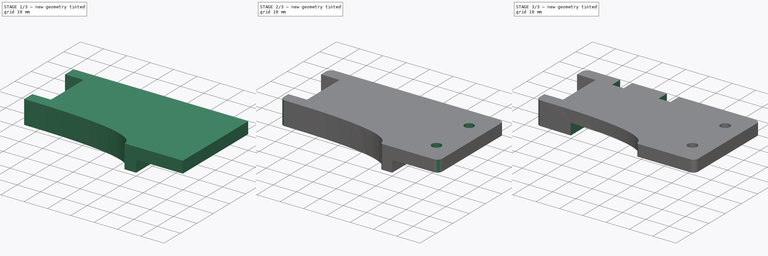
[diagram: build sequence overview — one tinted view per stage of 3, left to right]
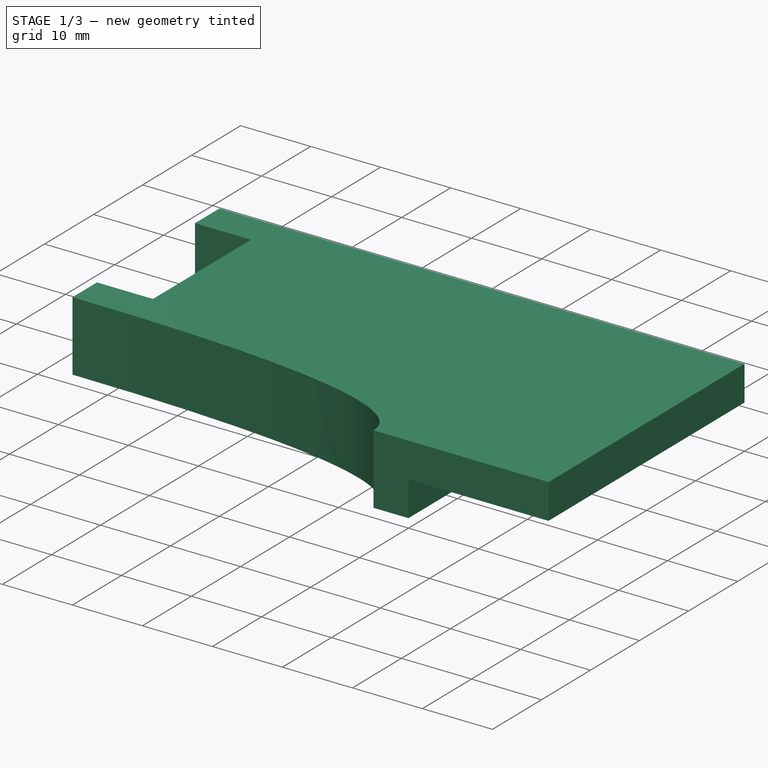
[diagram: stage 1 of 3 — iso view after this stage's code; geometry added in this stage tinted green]
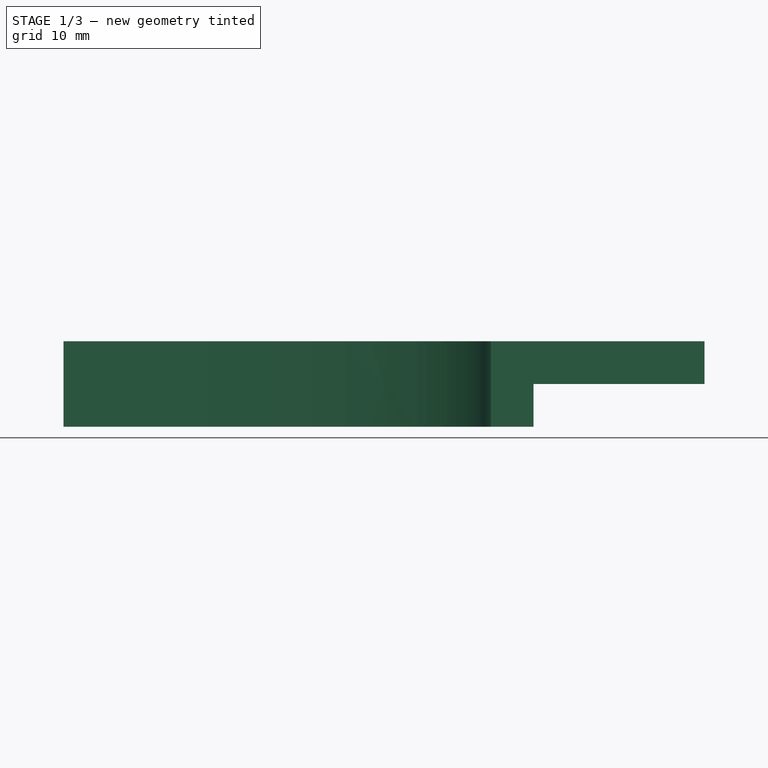
[diagram: stage 1 of 3 — front view after this stage's code; geometry added in this stage tinted green]
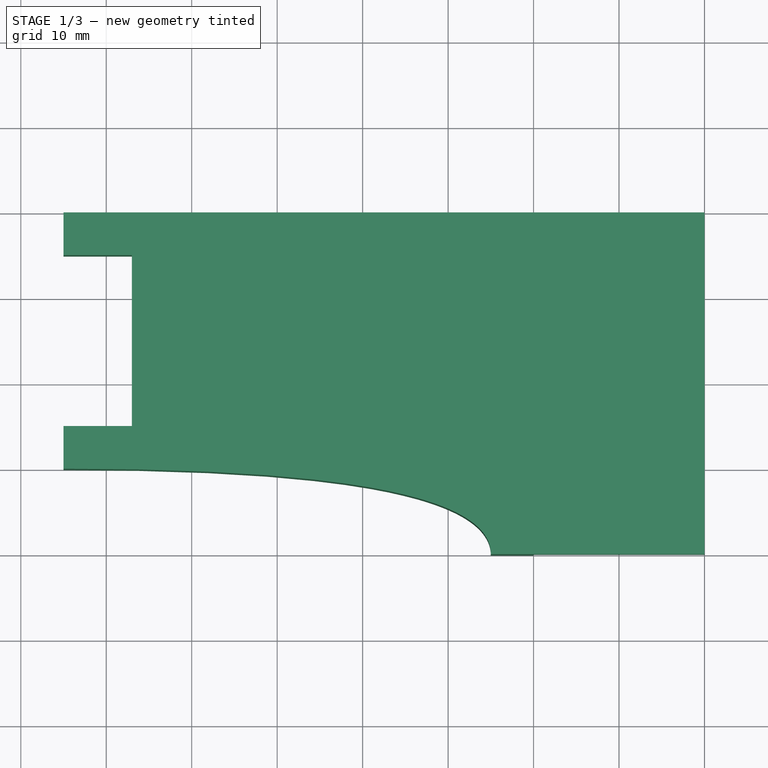
[diagram: stage 1 of 3 — top view after this stage's code; geometry added in this stage tinted green]
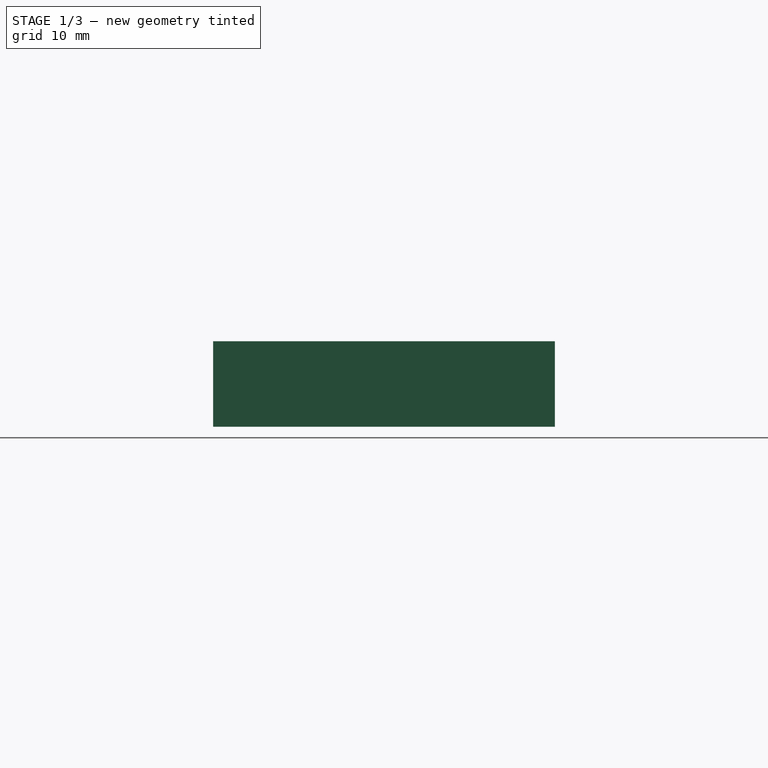
[diagram: stage 1 of 3 — right view after this stage's code; geometry added in this stage tinted green]
FCSTD DOCUMENT  (FreeCAD 0.21R33771 (Git))
Label: button_mount_v4
License: All rights reserved
LicenseURL: https://en.wikipedia.org/wiki/All_rights_reserved
objects: Sketcher::SketchObject×5, PartDesign::Pocket×4, PartDesign::Body×2, PartDesign::Fillet×2, PartDesign::Pad×1
note: 21 computed .brp shape members not serialized (recipe doc carries the construction recipe); baked Part::Feature solids carry a one-line shape summary decoded from their .brp

FEATURE [Sketcher::SketchObject] Sketch
  FullyConstrained = false
  MapMode = 5
  Support = -> [XY_Plane]
  sketch-geometry (14):
    g0: LineSegment StartX=0 StartY=0 StartZ=0 EndX=0 EndY=40 EndZ=0
    g1: LineSegment StartX=-75 StartY=35 StartZ=0 EndX=-67 EndY=35 EndZ=0
    g2: LineSegment StartX=-67 StartY=35 StartZ=0 EndX=-67 EndY=15 EndZ=0
    g3: LineSegment StartX=-67 StartY=15 StartZ=0 EndX=-75 EndY=15 EndZ=0
    g4: LineSegment StartX=0 StartY=0 StartZ=0 EndX=-25 EndY=0 EndZ=0
    g5: Circle CenterX=-25 CenterY=0 CenterZ=0 NormalX=0 NormalY=0 NormalZ=1 AngleXU=0 Radius=1
    g6: Circle CenterX=-25 CenterY=10 CenterZ=0 NormalX=0 NormalY=0 NormalZ=1 AngleXU=0 Radius=1
    g7: Circle CenterX=-75 CenterY=10 CenterZ=0 NormalX=0 NormalY=0 NormalZ=1 AngleXU=0 Radius=1
    g8: BSplineCurve PolesCount=3 KnotsCount=2 Degree=2 IsPeriodic=0
    g9: GeomPoint X=-25 Y=0 Z=0
    g10: GeomPoint X=-75 Y=10 Z=0
    g11: LineSegment StartX=-75 StartY=10 StartZ=0 EndX=-75 EndY=15 EndZ=0
    g12: LineSegment StartX=-75 StartY=40 StartZ=0 EndX=-75 EndY=35 EndZ=0
    g13: LineSegment StartX=-75 StartY=40 StartZ=0 EndX=0 EndY=40 EndZ=0
  constraints (35):
    c: Coincident(g0,g-1)
    c: PointOnObject(g0,g-2)
    c: Horizontal(g1)
    c: Coincident(g1,g2)
    c: Vertical(g2)
    c: Coincident(g2,g3)
    c: Horizontal(g3)
    c: DistanceY(g2,g2) = 20
    c: Coincident(g4,g0)
    c: PointOnObject(g4,g-1)
    c: DistanceX(g4,g4) = 25
    c: Weight(g5) = 1
    c: Coincident(g8,g4)
    c: Equal(g5,g6)
    c: Equal(g5,g7)
    c: InternalAlignment(g5,g8)
    c: InternalAlignment(g6,g8)
    c: InternalAlignment(g7,g8)
    c: InternalAlignment(g9,g8)
    c: InternalAlignment(g10,g8)
    c: Coincident(g11,g8)
    c: Coincident(g11,g3)
    c: Vertical(g11)
    c: Horizontal(g6,g8)
    c: DistanceY(g4,g8) = 10
    c: DistanceX(g1,g1) = 8
    c: DistanceX(g3,g3) = 8
    c: DistanceY(g11,g11) = 5
    c: Coincident(g12,g1)
    c: Vertical(g12)
    c: DistanceY(g12,g12) = 5
    c: Coincident(g13,g12)
    c: Coincident(g13,g0)
    c: Horizontal(g13)
    c: DistanceX(g13,g13) = 75
FEATURE [PartDesign::Body] Body001
  Origin = -> Origin001
FEATURE [PartDesign::Pad] Pad
  Direction = (0,0,1)
  Length = 10
  Length2 = 10
  Profile = -> Sketch
  ReferenceAxis = -> Sketch [N_Axis]
  Type = 0
FEATURE [Sketcher::SketchObject] Sketch001
  FullyConstrained = true
  MapMode = 5
  Support = -> [XY_Plane]
  sketch-geometry (4):
    g0: LineSegment StartX=5 StartY=45 StartZ=0 EndX=-20 EndY=45 EndZ=0
    g1: LineSegment StartX=-20 StartY=45 StartZ=0 EndX=-20 EndY=-5 EndZ=0
    g2: LineSegment StartX=-20 StartY=-5 StartZ=0 EndX=5 EndY=-5 EndZ=0
    g3: LineSegment StartX=5 StartY=-5 StartZ=0 EndX=5 EndY=45 EndZ=0
  constraints (12):
    c: Coincident(g0,g1)
    c: Coincident(g1,g2)
    c: Coincident(g2,g3)
    c: Coincident(g3,g0)
    c: Horizontal(g0)
    c: Horizontal(g2)
    c: Vertical(g1)
    c: Vertical(g3)
    c: DistanceY(g3,g3) = 50
    c: DistanceX(g0,g0) = 25
    c: DistanceX(g-1,g2) = 5
    c: DistanceY(g2,g-1) = 5
FEATURE [PartDesign::Pocket] Pocket
  BaseFeature = -> Pad
  Direction = (0,0,-1)
  Length = 5
  Length2 = 5
  Profile = -> Sketch001
  ReferenceAxis = -> Sketch001 [N_Axis]
  Reversed = true
  Type = 0
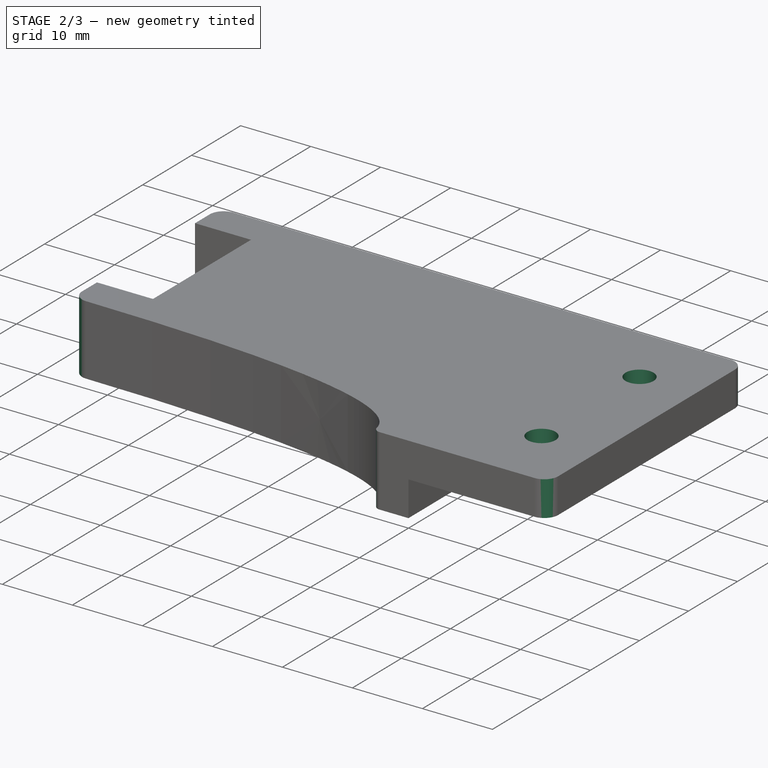
[diagram: stage 2 of 3 — iso view after this stage's code; geometry added in this stage tinted green]
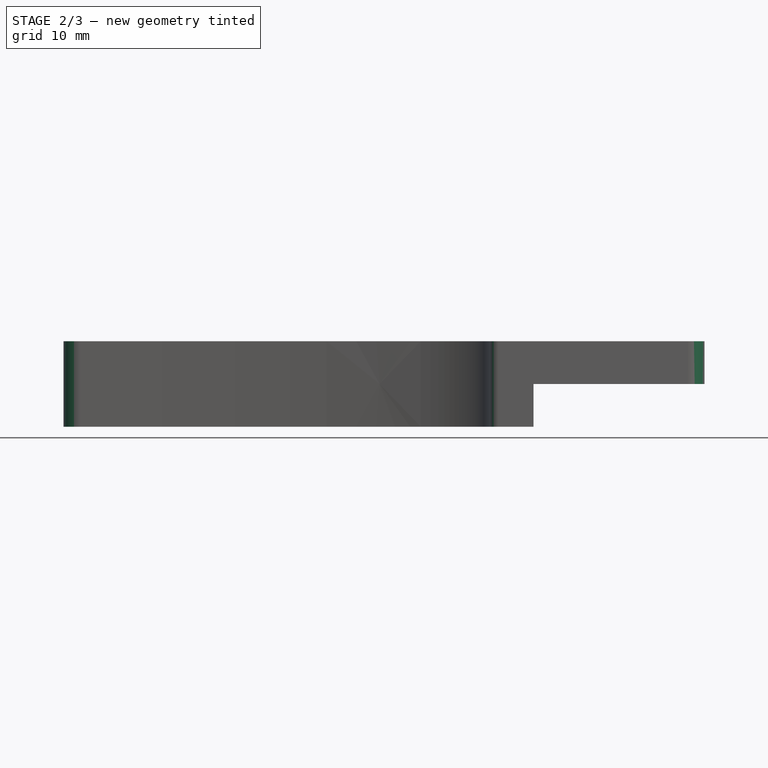
[diagram: stage 2 of 3 — front view after this stage's code; geometry added in this stage tinted green]
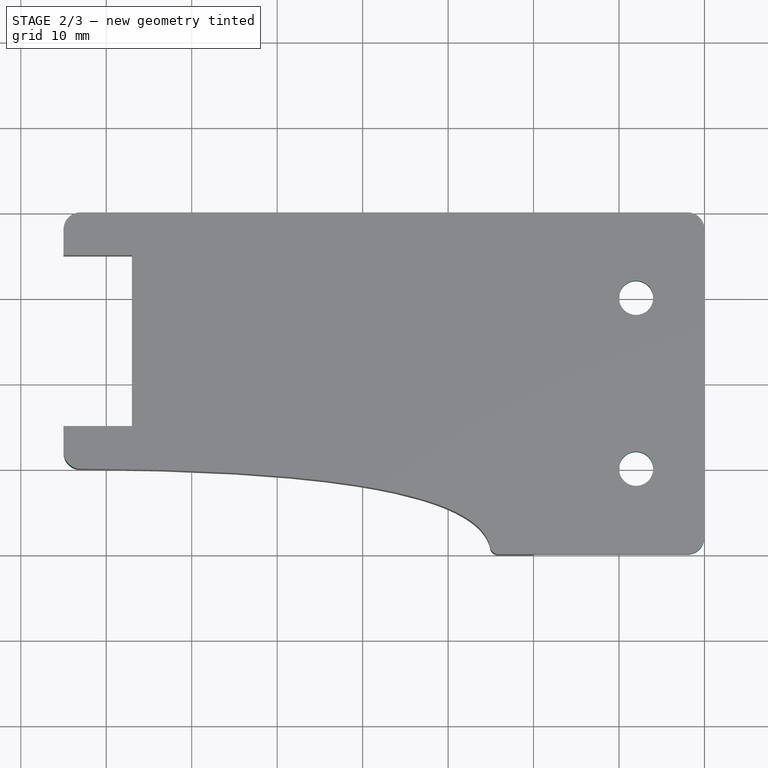
[diagram: stage 2 of 3 — top view after this stage's code; geometry added in this stage tinted green]
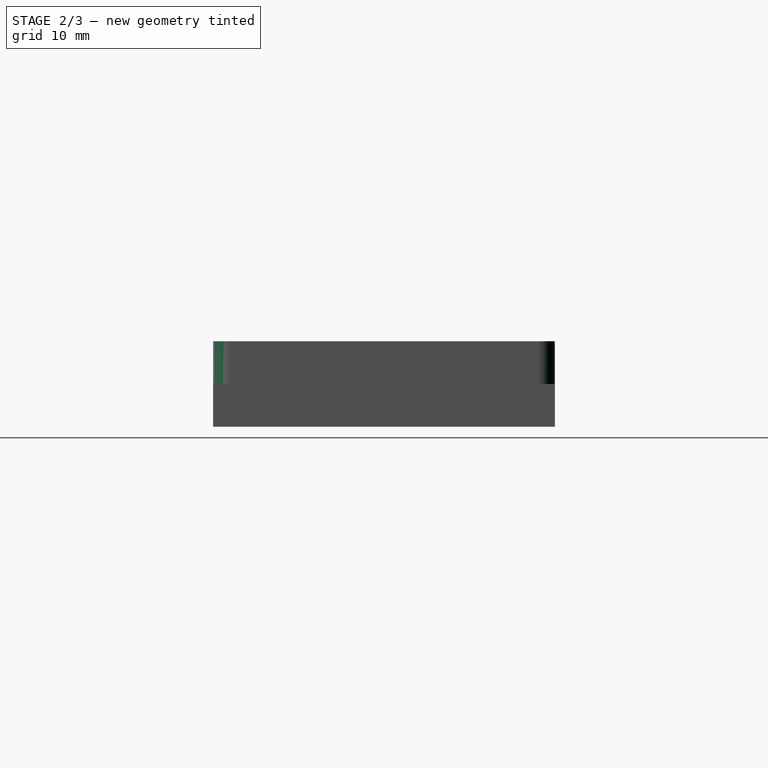
[diagram: stage 2 of 3 — right view after this stage's code; geometry added in this stage tinted green]
FEATURE [Sketcher::SketchObject] Sketch002
  FullyConstrained = true
  MapMode = 5
  Support = -> [XY_Plane]
  sketch-geometry (2):
    g0: Circle CenterX=-8 CenterY=30 CenterZ=0 NormalX=0 NormalY=0 NormalZ=1 AngleXU=0 Radius=2
    g1: Circle CenterX=-8 CenterY=10 CenterZ=0 NormalX=0 NormalY=0 NormalZ=1 AngleXU=0 Radius=2
  constraints (6):
    c: Radius(g0) = 2
    c: Radius(g1) = 2
    c: Vertical(g0,g1)
    c: DistanceY(g1,g0) = 20
    c: DistanceX(g1,g-1) = 8
    c: DistanceY(g-1,g1) = 10
FEATURE [PartDesign::Pocket] Pocket001
  BaseFeature = -> Pocket
  Direction = (0,0,-1)
  Length = 12
  Length2 = 5
  Profile = -> Sketch002
  ReferenceAxis = -> Sketch002 [N_Axis]
  Reversed = true
  Type = 0
FEATURE [PartDesign::Fillet] Fillet
  Base = -> Pocket001 [Edge32,Edge6,Edge21,Edge33]
  BaseFeature = -> Pocket001
  Radius = 2
  SupportTransform = false
  UseAllEdges = false
FEATURE [PartDesign::Fillet] Fillet001
  Base = -> Fillet [Edge6]
  BaseFeature = -> Fillet
  Radius = 1
  SupportTransform = false
  UseAllEdges = false
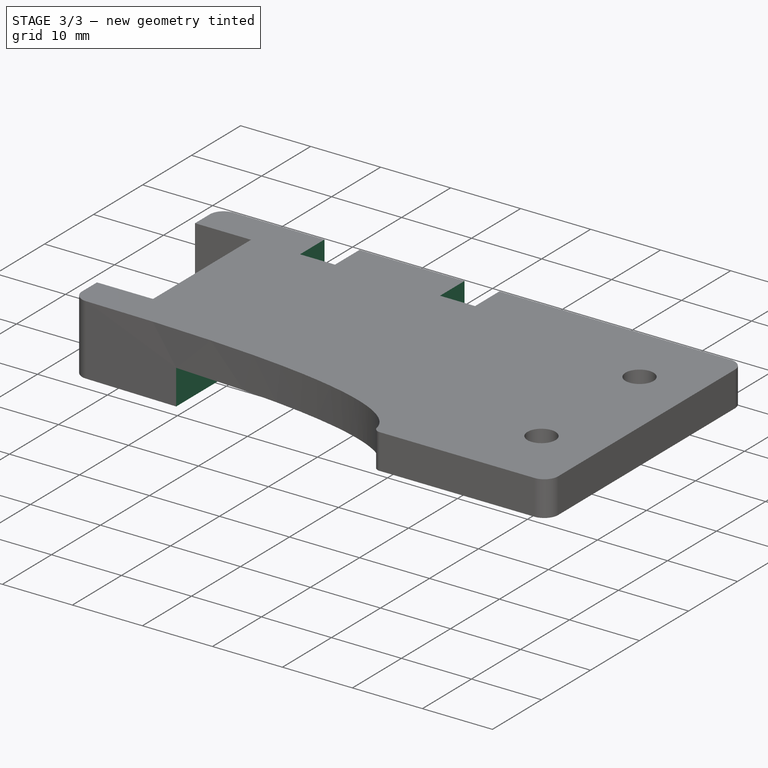
[diagram: stage 3 of 3 — iso view after this stage's code; geometry added in this stage tinted green]
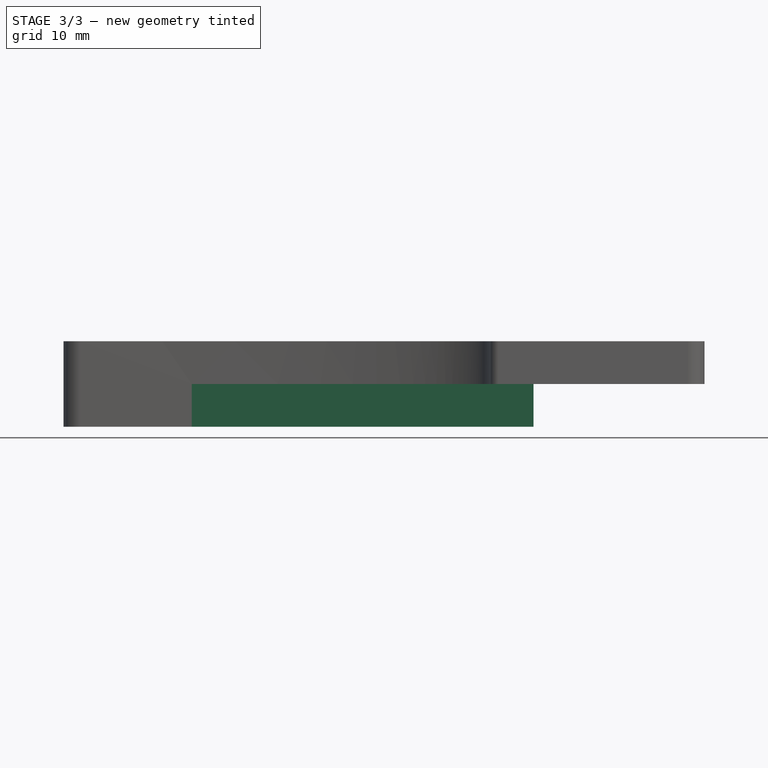
[diagram: stage 3 of 3 — front view after this stage's code; geometry added in this stage tinted green]
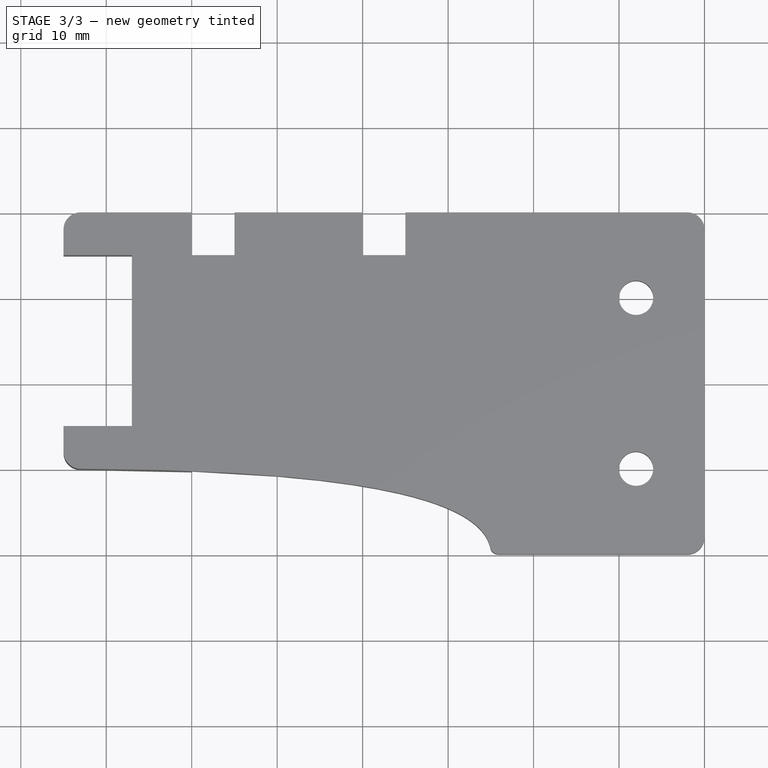
[diagram: stage 3 of 3 — top view after this stage's code; geometry added in this stage tinted green]
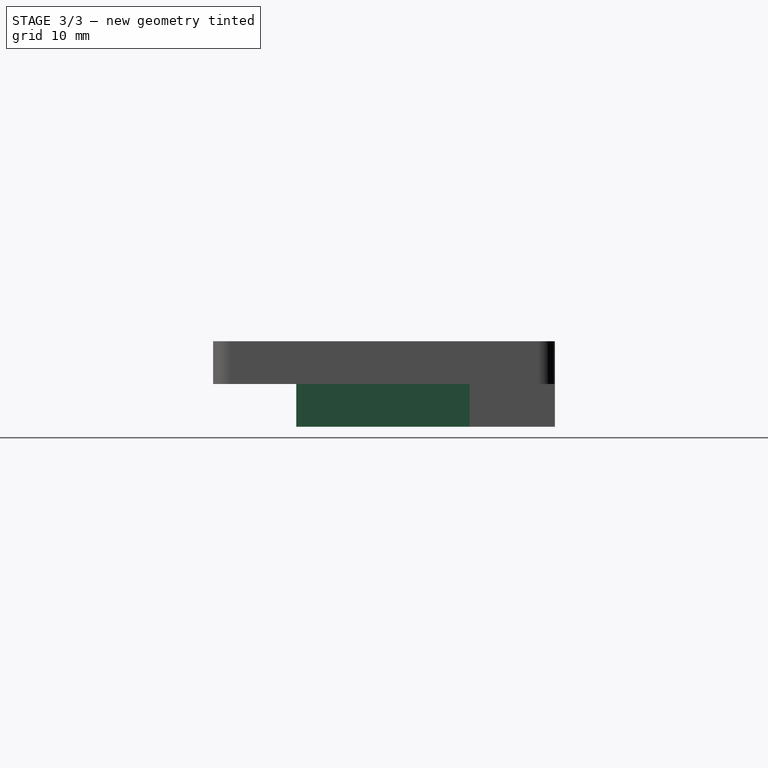
[diagram: stage 3 of 3 — right view after this stage's code; geometry added in this stage tinted green]
FEATURE [Sketcher::SketchObject] Sketch003
  FullyConstrained = true
  MapMode = 5
  Placement = pos=(0,40,0) rot=(0,0.707107,0.707107;3.14159rad)
  Support = -> [Fillet001]
  sketch-geometry (16):
    g0: LineSegment StartX=65 StartY=-5 StartZ=0 EndX=65 EndY=5 EndZ=0
    g1: LineSegment StartX=65 StartY=5 StartZ=0 EndX=60 EndY=5 EndZ=0
    g2: LineSegment StartX=60 StartY=5 StartZ=0 EndX=60 EndY=15 EndZ=0
    g3: LineSegment StartX=60 StartY=15 StartZ=0 EndX=55 EndY=15 EndZ=0
    g4: LineSegment StartX=55 StartY=15 StartZ=0 EndX=55 EndY=5 EndZ=0
    g5: LineSegment StartX=55 StartY=5 StartZ=0 EndX=50 EndY=5 EndZ=0
    g6: LineSegment StartX=50 StartY=5 StartZ=0 EndX=50 EndY=-5 EndZ=0
    g7: LineSegment StartX=50 StartY=-5 StartZ=0 EndX=65 EndY=-5 EndZ=0
    g8: LineSegment StartX=45 StartY=-5 StartZ=0 EndX=45 EndY=5 EndZ=0
    g9: LineSegment StartX=45 StartY=5 StartZ=0 EndX=40 EndY=5 EndZ=0
    g10: LineSegment StartX=40 StartY=5 StartZ=0 EndX=40 EndY=15 EndZ=0
    g11: LineSegment StartX=40 StartY=15 StartZ=0 EndX=35 EndY=15 EndZ=0
    g12: LineSegment StartX=35 StartY=15 StartZ=0 EndX=35 EndY=5 EndZ=0
    g13: LineSegment StartX=35 StartY=5 StartZ=0 EndX=30 EndY=5 EndZ=0
    g14: LineSegment StartX=30 StartY=5 StartZ=0 EndX=30 EndY=-5 EndZ=0
    g15: LineSegment StartX=30 StartY=-5 StartZ=0 EndX=45 EndY=-5 EndZ=0
  constraints (48):
    c: Vertical(g0)
    c: Coincident(g0,g1)
    c: Horizontal(g1)
    c: Coincident(g1,g2)
    c: Vertical(g2)
    c: Coincident(g2,g3)
    c: Horizontal(g3)
    c: Coincident(g3,g4)
    c: Vertical(g4)
    c: Coincident(g4,g5)
    c: Horizontal(g5)
    c: Coincident(g5,g6)
    c: Vertical(g6)
    c: Coincident(g6,g7)
    c: Coincident(g7,g0)
    c: Horizontal(g7)
    c: Vertical(g8)
    c: Coincident(g8,g9)
    c: Horizontal(g9)
    c: Coincident(g9,g10)
    c: Vertical(g10)
    c: Coincident(g10,g11)
    c: Horizontal(g11)
    c: Coincident(g11,g12)
    c: Vertical(g12)
    c: Coincident(g12,g13)
    c: Horizontal(g13)
    c: Coincident(g13,g14)
    c: Vertical(g14)
    c: Coincident(g14,g15)
    c: Coincident(g15,g8)
    c: Horizontal(g15)
    c: Horizontal(g1,g4)
    c: Horizontal(g9,g12)
    c: DistanceX(g11,g11) = 5
    c: DistanceX(g3,g3) = 5
    c: Horizontal(g8,g5)
    c: DistanceY(g14,g11) = 20
    c: DistanceY(g14,g14) = 10
    c: DistanceY(g-1,g13) = 5
    c: Equal(g6,g14)
    c: DistanceX(g13,g13) = 5
    c: Equal(g9,g5)
    c: Equal(g5,g1)
    c: Equal(g1,g13)
    c: DistanceX(g8,g6) = 5
    c: DistanceX(g-1,g14) = 30
    c: Equal(g4,g12)
FEATURE [PartDesign::Pocket] Pocket002
  BaseFeature = -> Fillet001
  Direction = (0,-1,2e-16)
  Length = 5
  Length2 = 5
  Profile = -> Sketch003
  ReferenceAxis = -> Sketch003 [N_Axis]
  Type = 0
FEATURE [Sketcher::SketchObject] Sketch004
  FullyConstrained = true
  MapMode = 5
  Placement = pos=(0,0,0) rot=(1,0,0;3.14159rad)
  Support = -> [Pocket002]
  sketch-geometry (4):
    g0: LineSegment StartX=-20 StartY=0 StartZ=0 EndX=-60 EndY=0 EndZ=0
    g1: LineSegment StartX=-60 StartY=0 StartZ=0 EndX=-60 EndY=-30 EndZ=0
    g2: LineSegment StartX=-60 StartY=-30 StartZ=0 EndX=-20 EndY=-30 EndZ=0
    g3: LineSegment StartX=-20 StartY=-30 StartZ=0 EndX=-20 EndY=0 EndZ=0
  constraints (12):
    c: Coincident(g0,g1)
    c: Coincident(g1,g2)
    c: Coincident(g2,g3)
    c: Coincident(g3,g0)
    c: Horizontal(g0)
    c: Horizontal(g2)
    c: Vertical(g1)
    c: Vertical(g3)
    c: DistanceX(g0,g-1) = 20
    c: DistanceY(g3,g3) = 30
    c: Horizontal(g0,g-1)
    c: DistanceX(g0,g0) = 40
FEATURE [PartDesign::Pocket] Pocket003
  BaseFeature = -> Pocket002
  Direction = (0,0,1)
  Length = 5
  Length2 = 5
  Profile = -> Sketch004
  ReferenceAxis = -> Sketch004 [N_Axis]
  Type = 0
FEATURE [PartDesign::Body] Body
  Group = -> [Sketch,Pad,Sketch001,Pocket,Sketch002,Pocket001,Fillet,Fillet001,Sketch003,Pocket002,Sketch004,Pocket003]
  Origin = -> Origin
  Tip = -> Pocket003
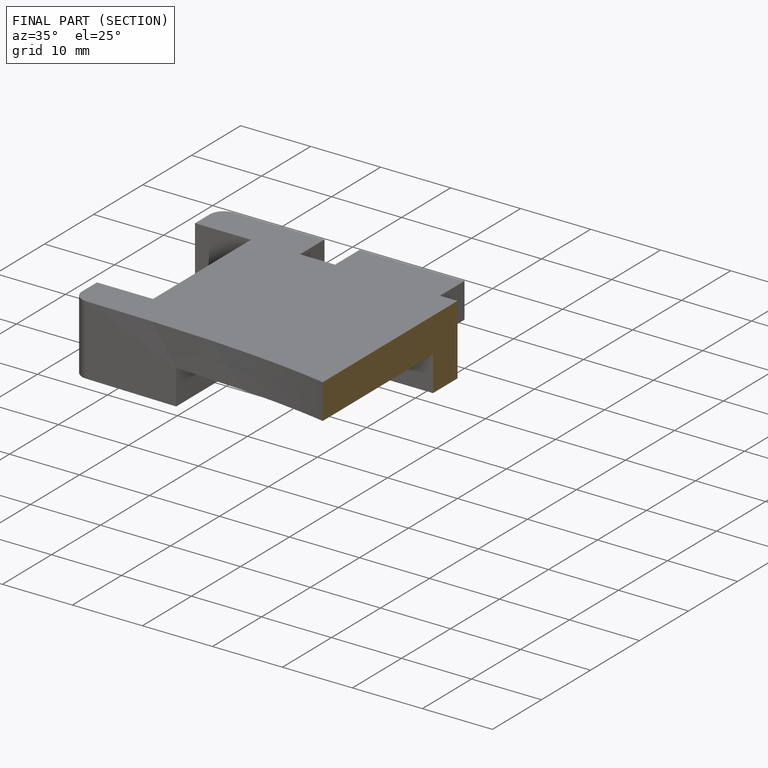
[diagram: finished part — half-section view (interior)]
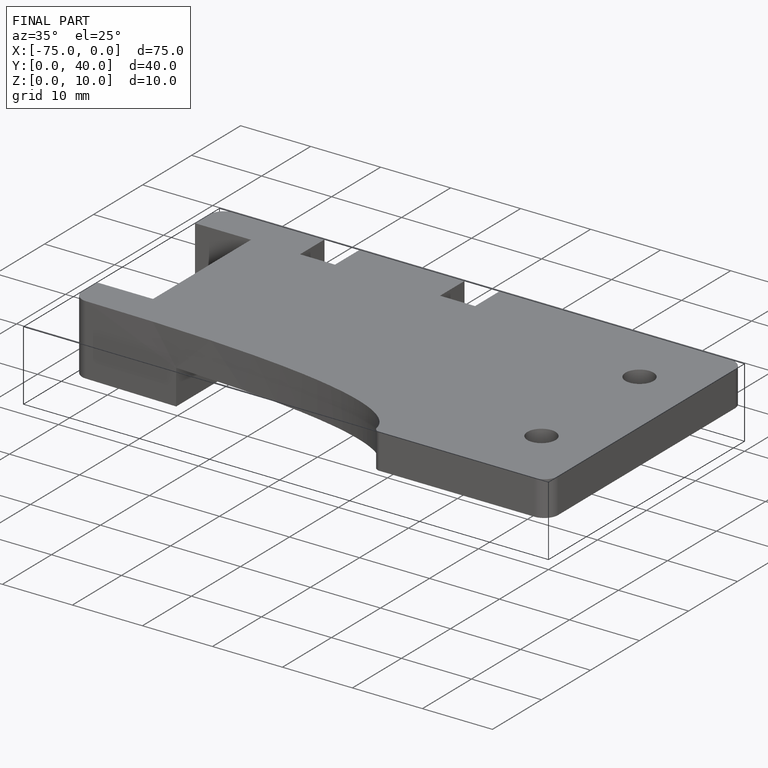
[diagram: finished part — iso view with bounding-box wireframe]
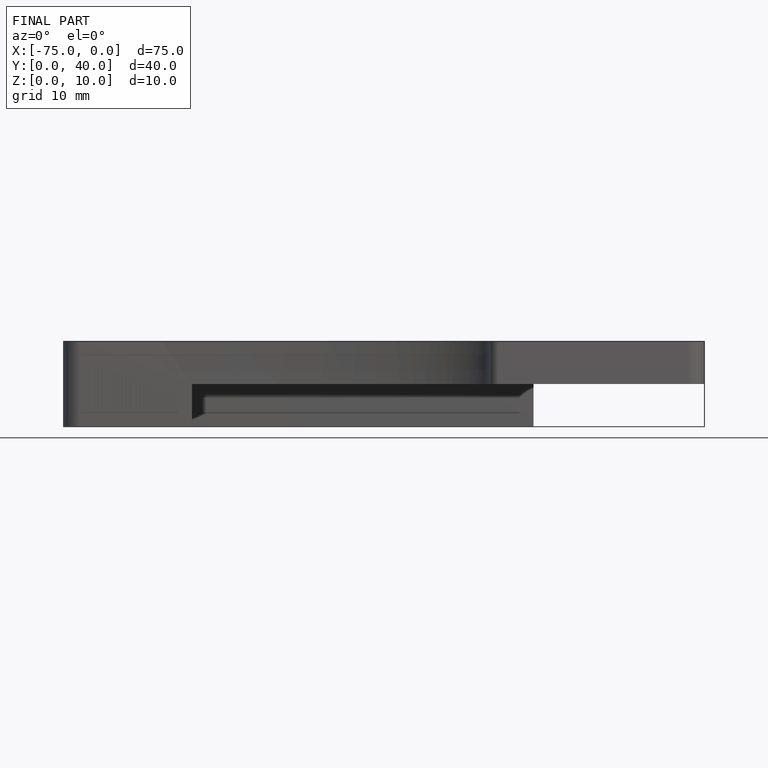
[diagram: finished part — front view with bounding-box wireframe]
